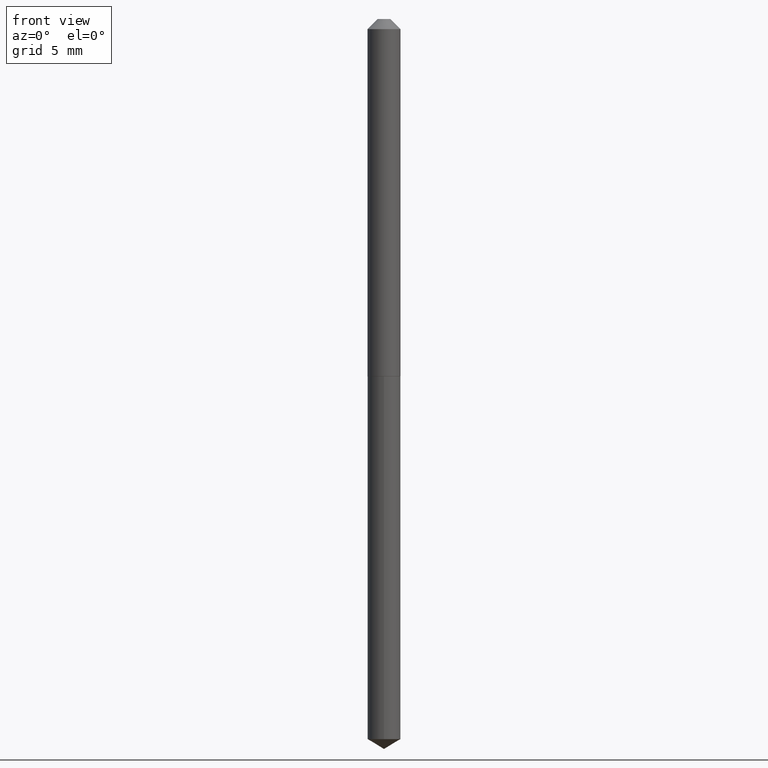
[diagram: clean part render]
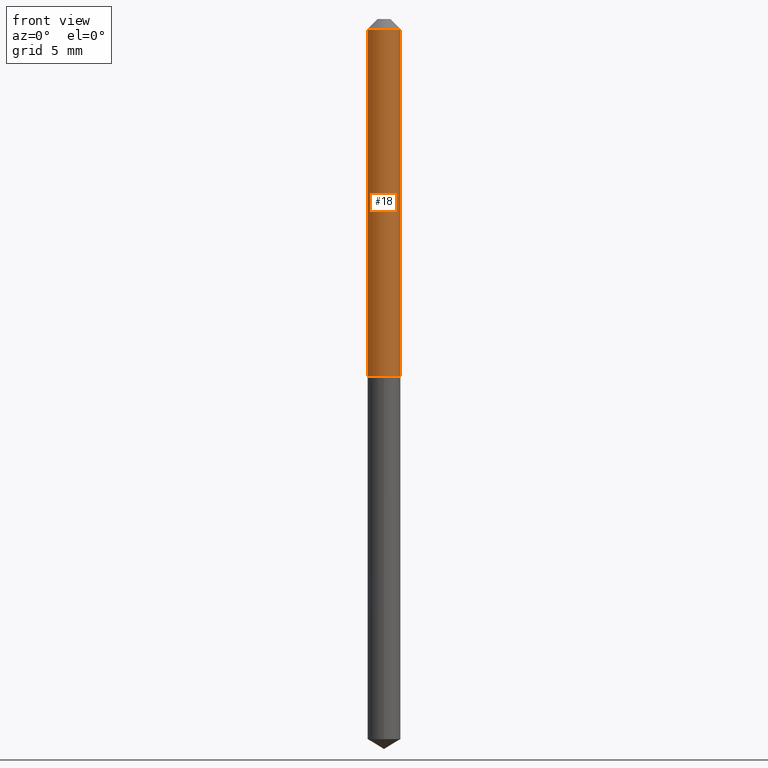
[diagram: same view with one face highlighted and labeled with its STEP entity id]
A machine part, front view. The second image highlights one B-rep face of the part: STEP entity #18.
In plain terms, the highlighted cylindrical surface (edge-blend (fillet) strip) has radius 1.2891 mm, axis along (-0, 0, 1).
Its self-contained STEP definition (entity closure, byte-faithful):
#6 = CARTESIAN_POINT ( 'NONE',  ( 7.642090019328601786E-31, -1.091087918388490144E-16, -0.03125000000000020123 ) ) ;
#9 = EDGE_CURVE ( 'NONE', #284, #291, #377, .T. ) ;
#11 = EDGE_LOOP ( 'NONE', ( #142, #255, #135, #37 ) ) ;
#18 = ADVANCED_FACE ( 'NONE', ( #319 ), #228, .T. ) ;
#27 = CARTESIAN_POINT ( 'NONE',  ( -0.05075000000000001732, -1.616014434554323559E-15, -0.03125000000000020123 ) ) ;
#29 = AXIS2_PLACEMENT_3D ( 'NONE', #57, #344, #55 ) ;
#32 = EDGE_CURVE ( 'NONE', #267, #284, #220, .T. ) ;
#36 = VECTOR ( 'NONE', #94, 39.37007874015748143 ) ;
#37 = ORIENTED_EDGE ( 'NONE', *, *, #302, .F. ) ;
#52 = AXIS2_PLACEMENT_3D ( 'NONE', #144, #169, #375 ) ;
#55 = DIRECTION ( 'NONE',  ( 1.000000000000000000, -6.982962677686265922E-15, 4.876176775795935793E-29 ) ) ;
#57 = CARTESIAN_POINT ( 'NONE',  ( 0.000000000000000000, 0.000000000000000000, 0.000000000000000000 ) ) ;
#70 = CARTESIAN_POINT ( 'NONE',  ( 0.05075000000000014222, -4.198506309958881744E-15, -1.100999999999999979 ) ) ;
#76 = VERTEX_POINT ( 'NONE', #27 ) ;
#85 = AXIS2_PLACEMENT_3D ( 'NONE', #6, #186, #222 ) ;
#94 = DIRECTION ( 'NONE',  ( -2.445468806185136877E-29, 3.491481338843145188E-15, 1.000000000000000000 ) ) ;
#111 = EDGE_CURVE ( 'NONE', #267, #76, #240, .T. ) ;
#135 = ORIENTED_EDGE ( 'NONE', *, *, #9, .T. ) ;
#142 = ORIENTED_EDGE ( 'NONE', *, *, #111, .F. ) ;
#144 = CARTESIAN_POINT ( 'NONE',  ( 2.692461155609835411E-29, -3.844120954066303109E-15, -1.100999999999999979 ) ) ;
#148 = CARTESIAN_POINT ( 'NONE',  ( 0.05075000000000008671, -3.543853558925785858E-16, 2.474659713716441605E-30 ) ) ;
#169 = DIRECTION ( 'NONE',  ( -2.445468806185136597E-29, 3.491481338843145583E-15, 1.000000000000000000 ) ) ;
#172 = CIRCLE ( 'NONE', #85, 0.05075000000000001732 ) ;
#180 = CARTESIAN_POINT ( 'NONE',  ( -0.05075000000000008671, 3.606004383982514604E-16, -2.496359558304368800E-30 ) ) ;
#186 = DIRECTION ( 'NONE',  ( -2.445468806185136597E-29, 3.491481338843145583E-15, 1.000000000000000000 ) ) ;
#220 = CIRCLE ( 'NONE', #52, 0.05075000000000014222 ) ;
#222 = DIRECTION ( 'NONE',  ( 1.000000000000000000, -6.982962677686265133E-15, 0.000000000000000000 ) ) ;
#228 = CYLINDRICAL_SURFACE ( 'NONE', #29, 0.05075000000000008671 ) ;
#240 = LINE ( 'NONE', #180, #36 ) ;
#255 = ORIENTED_EDGE ( 'NONE', *, *, #32, .T. ) ;
#267 = VERTEX_POINT ( 'NONE', #365 ) ;
#284 = VERTEX_POINT ( 'NONE', #70 ) ;
#291 = VERTEX_POINT ( 'NONE', #331 ) ;
#302 = EDGE_CURVE ( 'NONE', #76, #291, #172, .T. ) ;
#316 = DIRECTION ( 'NONE',  ( -2.445468806185136877E-29, 3.491481338843145188E-15, 1.000000000000000000 ) ) ;
#319 = FACE_OUTER_BOUND ( 'NONE', #11, .T. ) ;
#331 = CARTESIAN_POINT ( 'NONE',  ( 0.05075000000000001732, -4.634941477314271441E-16, -0.03125000000000020123 ) ) ;
#344 = DIRECTION ( 'NONE',  ( -2.445468806185136597E-29, 3.491481338843145583E-15, 1.000000000000000000 ) ) ;
#365 = CARTESIAN_POINT ( 'NONE',  ( -0.05075000000000014222, -3.483520515668050958E-15, -1.100999999999999979 ) ) ;
#375 = DIRECTION ( 'NONE',  ( 1.000000000000000000, -6.982962677686270655E-15, 0.000000000000000000 ) ) ;
#377 = LINE ( 'NONE', #148, #380 ) ;
#380 = VECTOR ( 'NONE', #316, 39.37007874015748143 ) ;